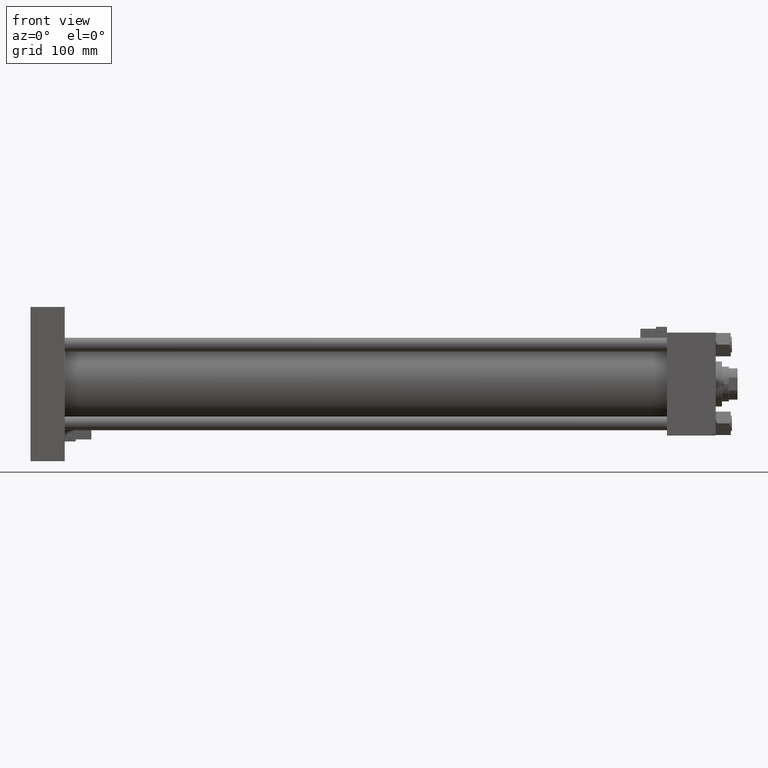
[diagram: clean part render]
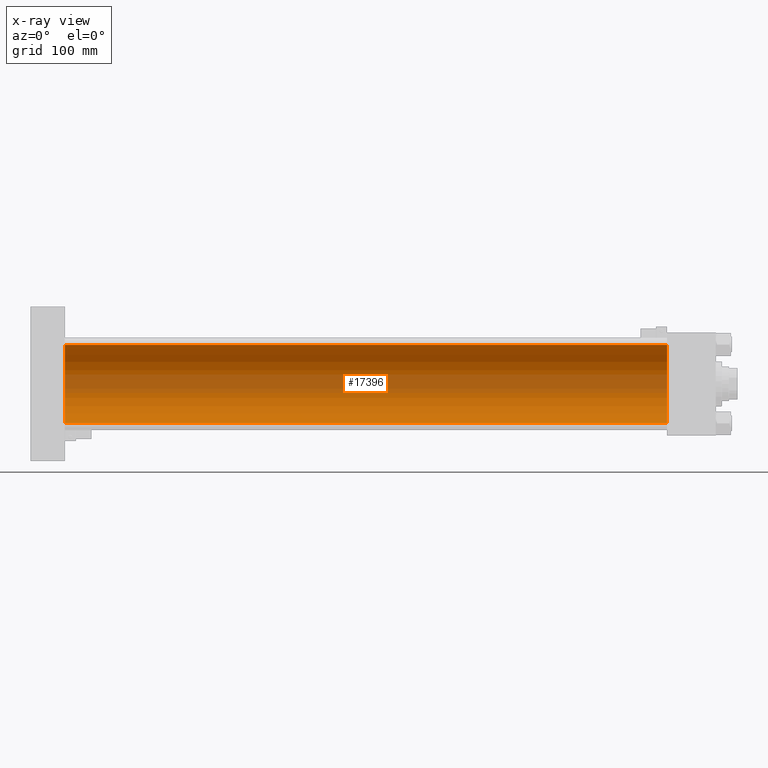
[diagram: x-ray — body ghosted, one internal face saturated and labeled with its STEP entity id]
A machine part, front view, then the same camera in x-ray: the body is ghosted and one INTERNAL B-rep face — a face not visible from any outside direction — is saturated and labeled: STEP entity #17396.
In plain terms, the highlighted cylindrical surface (partial cylindrical patch) has radius 62.5 mm, axis along (-1, -0, -0).
Its self-contained STEP definition (entity closure, byte-faithful):
#547 = VERTEX_POINT ( 'NONE', #1045 ) ;
#851 = CARTESIAN_POINT ( 'NONE',  ( 1018.999999999999886, -2.602085213965210642E-15, 0.000000000000000000 ) ) ;
#1045 = CARTESIAN_POINT ( 'NONE',  ( 1018.999999999999886, 5.051957280705747162E-15, -62.50000000000000000 ) ) ;
#1386 = VERTEX_POINT ( 'NONE', #6729 ) ;
#1929 = VECTOR ( 'NONE', #23738, 1000.000000000000000 ) ;
#2118 = AXIS2_PLACEMENT_3D ( 'NONE', #851, #48585, #12058 ) ;
#5481 = ORIENTED_EDGE ( 'NONE', *, *, #12309, .T. ) ;
#6729 = CARTESIAN_POINT ( 'NONE',  ( 1018.999999999999886, -2.602085213965210642E-15, 62.50000000000000000 ) ) ;
#6914 = DIRECTION ( 'NONE',  ( 0.000000000000000000, 0.000000000000000000, -1.000000000000000000 ) ) ;
#7000 = EDGE_LOOP ( 'NONE', ( #44697, #5481, #12846, #23002 ) ) ;
#9709 = DIRECTION ( 'NONE',  ( 0.000000000000000000, 0.000000000000000000, -1.000000000000000000 ) ) ;
#11007 = FACE_OUTER_BOUND ( 'NONE', #7000, .T. ) ;
#11227 = CARTESIAN_POINT ( 'NONE',  ( 1018.999999999999886, -2.602085213965210642E-15, 62.50000000000000000 ) ) ;
#12058 = DIRECTION ( 'NONE',  ( 0.000000000000000000, 0.000000000000000000, 1.000000000000000000 ) ) ;
#12309 = EDGE_CURVE ( 'NONE', #547, #1386, #50456, .T. ) ;
#12846 = ORIENTED_EDGE ( 'NONE', *, *, #13628, .T. ) ;
#13393 = CIRCLE ( 'NONE', #21898, 62.50000000000000000 ) ;
#13628 = EDGE_CURVE ( 'NONE', #1386, #28044, #51760, .T. ) ;
#17396 = ADVANCED_FACE ( 'NONE', ( #11007 ), #43547, .F. ) ;
#20199 = LINE ( 'NONE', #41017, #38200 ) ;
#21898 = AXIS2_PLACEMENT_3D ( 'NONE', #46915, #30383, #6914 ) ;
#21971 = CARTESIAN_POINT ( 'NONE',  ( 55.00000000000000000, 5.051957280705747162E-15, -62.50000000000000000 ) ) ;
#23002 = ORIENTED_EDGE ( 'NONE', *, *, #31325, .F. ) ;
#23738 = DIRECTION ( 'NONE',  ( -1.000000000000000000, -0.000000000000000000, -0.000000000000000000 ) ) ;
#28044 = VERTEX_POINT ( 'NONE', #49569 ) ;
#30383 = DIRECTION ( 'NONE',  ( 1.000000000000000000, 0.000000000000000000, 0.000000000000000000 ) ) ;
#31325 = EDGE_CURVE ( 'NONE', #46293, #28044, #13393, .T. ) ;
#37540 = EDGE_CURVE ( 'NONE', #547, #46293, #20199, .T. ) ;
#38200 = VECTOR ( 'NONE', #52759, 1000.000000000000000 ) ;
#41017 = CARTESIAN_POINT ( 'NONE',  ( 1018.999999999999886, 5.051957280705747162E-15, -62.50000000000000000 ) ) ;
#43547 = CYLINDRICAL_SURFACE ( 'NONE', #2118, 62.50000000000000000 ) ;
#43644 = AXIS2_PLACEMENT_3D ( 'NONE', #45970, #49718, #9709 ) ;
#44697 = ORIENTED_EDGE ( 'NONE', *, *, #37540, .F. ) ;
#45970 = CARTESIAN_POINT ( 'NONE',  ( 1018.999999999999886, -2.602085213965210642E-15, 0.000000000000000000 ) ) ;
#46293 = VERTEX_POINT ( 'NONE', #21971 ) ;
#46915 = CARTESIAN_POINT ( 'NONE',  ( 55.00000000000000000, -2.602085213965210642E-15, 0.000000000000000000 ) ) ;
#48585 = DIRECTION ( 'NONE',  ( -1.000000000000000000, -0.000000000000000000, -0.000000000000000000 ) ) ;
#49569 = CARTESIAN_POINT ( 'NONE',  ( 55.00000000000000000, -2.602085213965210642E-15, 62.50000000000000000 ) ) ;
#49718 = DIRECTION ( 'NONE',  ( 1.000000000000000000, 0.000000000000000000, 0.000000000000000000 ) ) ;
#50456 = CIRCLE ( 'NONE', #43644, 62.50000000000000000 ) ;
#51760 = LINE ( 'NONE', #11227, #1929 ) ;
#52759 = DIRECTION ( 'NONE',  ( -1.000000000000000000, -0.000000000000000000, -0.000000000000000000 ) ) ;